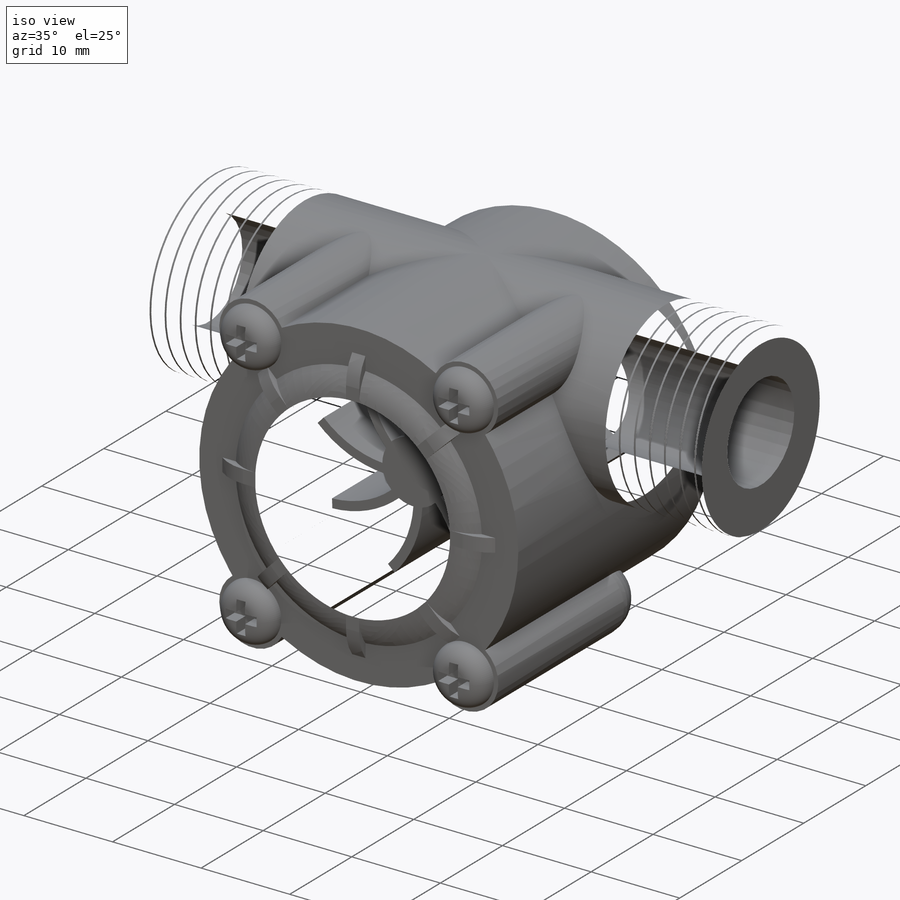
[diagram: iso view]
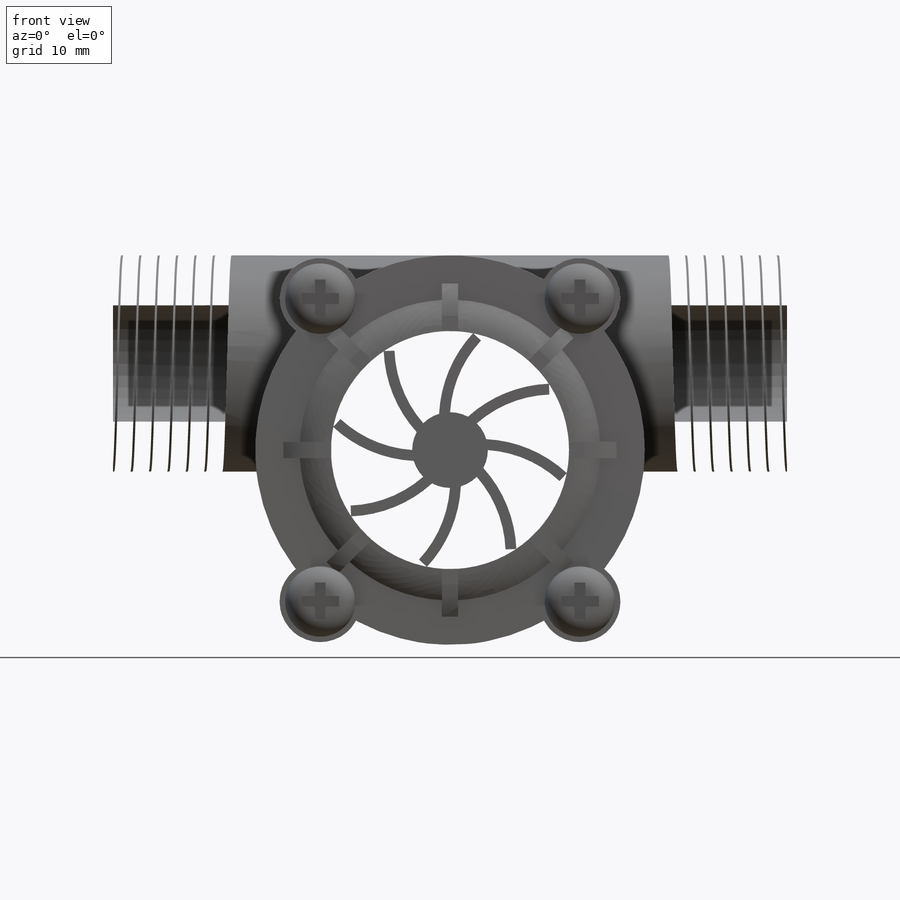
[diagram: front view]
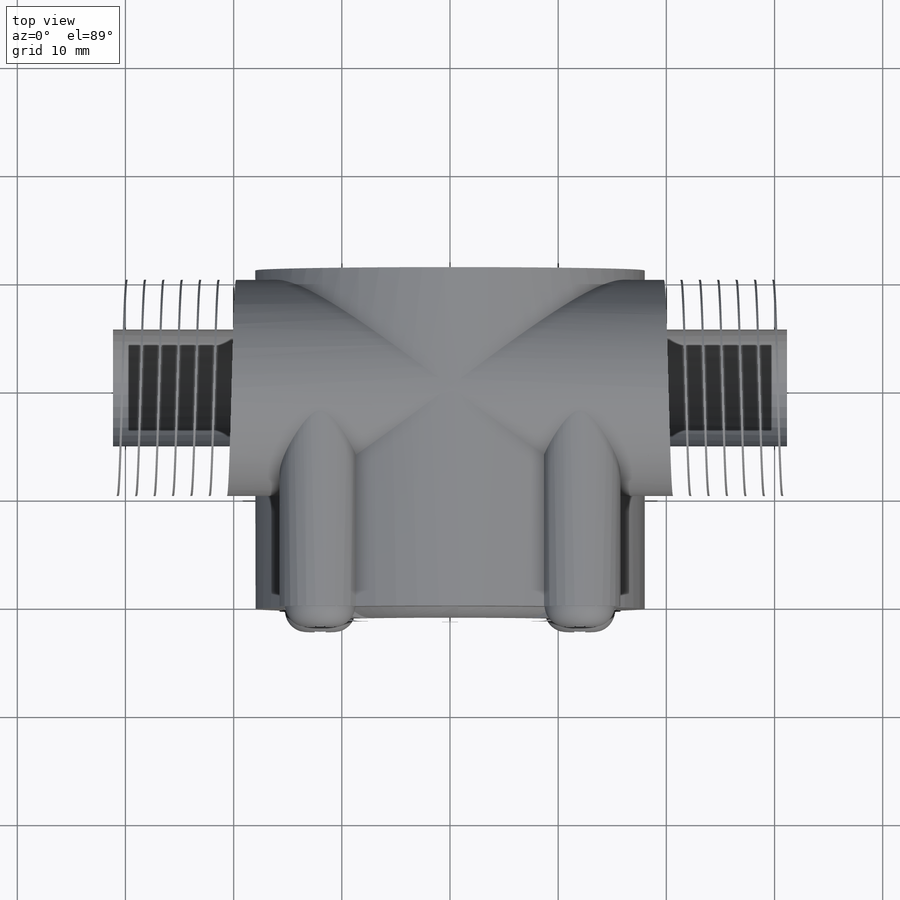
[diagram: top view]
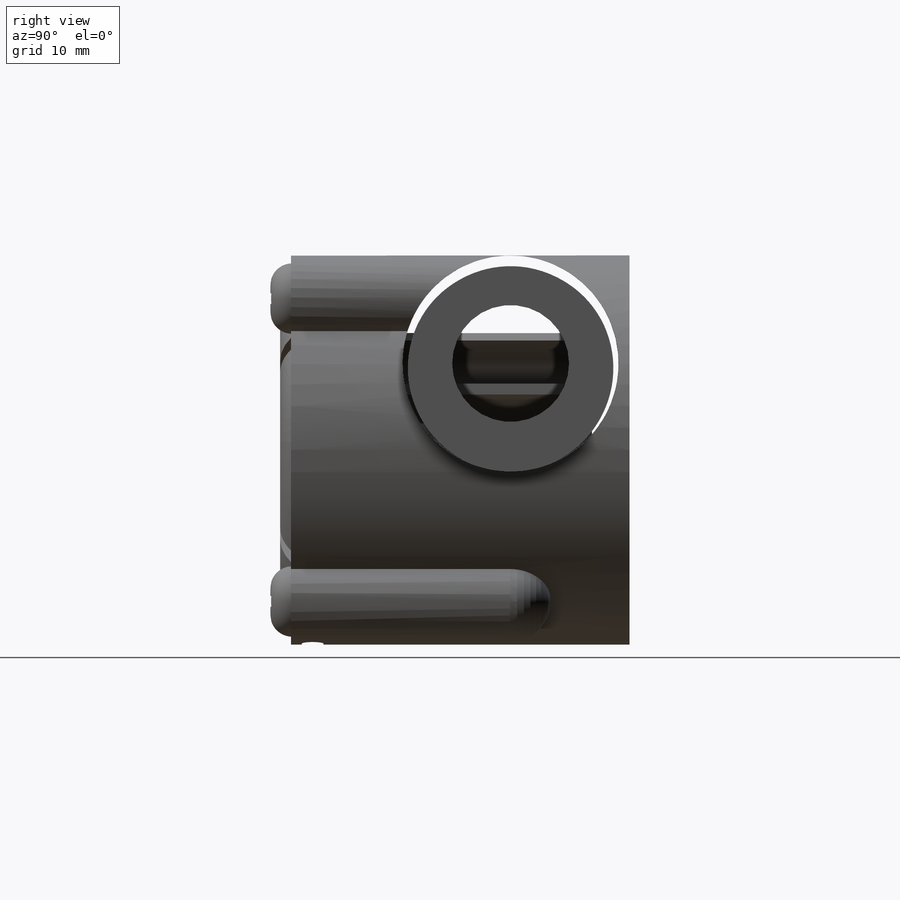
[diagram: right view]
SOLIDWORKS PART (.sldprt)
format: sldprt  version: not decoded by parser v0  size: 1,873,920 bytes
history: native  units: mm
features: sketch x22, cut_extrude x10, extrude x7, revolve x7, material x4, cut_revolve x2, pattern_circular x2, plane x1, fillet x1, helix x1, sweep x1, mirror x1 + 1 further entry (+9 scaffold rows collapsed)
feature tree (69):
  scaffold x9  (default folders/planes/origin — collapsed)
  material  "Материал <не указан>"
  material  "PTricksFreeParameters"
  material  "PTricksEqu"
  material  "PTricksFreeParameters"
  plane  "Спереди"
  "Начало координат"
  sketch  "Эскиз1"  dims[D1=36.0mm]
  extrude  "Бобышка-Вытянуть1"  Depth=21.3mm
  sketch  "Эскиз3"  dims[D3=7.5mm D1=24.0mm D2=28.0mm]
  extrude  "Бобышка-Вытянуть2"  Depth=25mm
  fillet  "Скругление1"  Radius=3.75mm
  sketch  "Эскиз2"  dims[D1=20.0mm D2=10.8mm D3=62.3mm]
  revolve  "Повернуть1"  Angle=360deg
  sketch  "Эскиз5"  dims[c1.D4=5.0mm c1.D3=5.0mm c1.D1=1.0mm c1.D2=27.8mm c2.D3=3.0mm]
  cut_revolve  "Вырез-Повернуть1"  Angle=360deg
  sketch  "Эскиз7"  dims[D1=5.0mm D2=15.4mm]
  extrude  "Бобышка-Вытянуть3"  Depth=1.5mm
  pattern_circular  "Круговой массив1"  Count=8 Angle=360deg
  sketch  "Эскиз8"
  helix  "Спираль1"  Pitch=11.05mm
  sketch  "Эскиз9"  dims[c1.D2=~0.20839mm c1.D3=0.2mm c1.D1=0.65mm c2.D2=9.0mm c2.D1=1.5mm]
  sweep  "Вырез-По траектории1"
  mirror  "Зеркальное отражение1"
  sketch  "Эскиз10"  dims[D1=22.0mm]
  cut_extrude  "Вырез-Вытянуть1"  Depth=0.1mm
  sketch  "Эскиз11"  dims[c1.D1=31.0mm c1.D2=10.1mm c1.D3=~9.48956mm c2.D3=55.0deg c2.D4=1.0mm c3.D3=~9.486765mm c4.D3=60.0deg]
  cut_extrude  "Вырез-Вытянуть2"  Depth=2mm
  revolve  "Скругление2"  [1 undecoded]
  revolve  "Скругление3"  [1 undecoded]
  pattern_circular  "Круговой массив2"  Count=6 Angle=360deg
  sketch  "Эскиз12"  dims[D1=6.9mm]
  cut_extrude  "Вырез-Вытянуть3"  Depth=0.5mm
  sketch  "Эскиз13"  dims[D1=34.0mm]
  cut_extrude  "Вырез-Вытянуть4"  Depth=2mm
  sketch  "Эскиз14"  dims[c1.D1=2.0mm c1.D2=6.6mm c1.D3=1.5511mm c2.D3=60.0deg c3.D3=3.0mm]
  extrude  "Бобышка-Вытянуть4"  Depth=1mm
  sketch  "Эскиз17"
  cut_extrude  "Вырез-Вытянуть5"  [1 undecoded]
  sketch  "Эскиз18"  dims[D1=2.0mm D2=28.0mm D3=3.0mm]
  cut_revolve  "Вырез-Повернуть2"  Angle=360deg
  sketch  "Эскиз16"  dims[D1=6.5mm]
  extrude  "Бобышка-Вытянуть5"  Depth=1.9mm
  revolve  "Скругление4"  [1 undecoded]
  revolve  "Скругление5"  [1 undecoded]
  revolve  "Скругление6"  [1 undecoded]
  revolve  "Скругление7"  [1 undecoded]
  sketch  "Эскиз19"  dims[D1=3.5mm D2=1.0mm]
  cut_extrude  "Вырез-Вытянуть6"  Depth=1.5mm
  sketch  "Эскиз20"  dims[D1=3.5mm D2=1.0mm]
  cut_extrude  "Вырез-Вытянуть7"  Depth=1.5mm
  sketch  "Эскиз21"  dims[D1=3.5mm D2=1.0mm]
  cut_extrude  "Вырез-Вытянуть8"  Depth=1.5mm
  sketch  "Эскиз22"  dims[D1=3.5mm D2=1.0mm]
  cut_extrude  "Вырез-Вытянуть9"  Depth=1.5mm
  sketch  "Эскиз23"
  extrude  "Бобышка-Вытянуть6"  Depth=11.5mm
  sketch  "Эскиз26"  dims[D1=1.0mm D2=1.0mm D3=4.0mm]
  cut_extrude  "Вырез-Вытянуть10"  [1 undecoded]
  sketch  "Эскиз27"  dims[D1=1.6mm D2=2.0mm]
  extrude  "Бобышка-Вытянуть7"  Depth=12mm
decode coverage: 41 of 54 modeling features carry decoded parameters; 1 rows unclassified (native names shown)
note: ~ marks probable driven/reference dimensions
note: 8 parameter values undecoded
summary: no parameter record found for 8 features
note: suppression state not decoded; provenance and decode notes live in map.json
